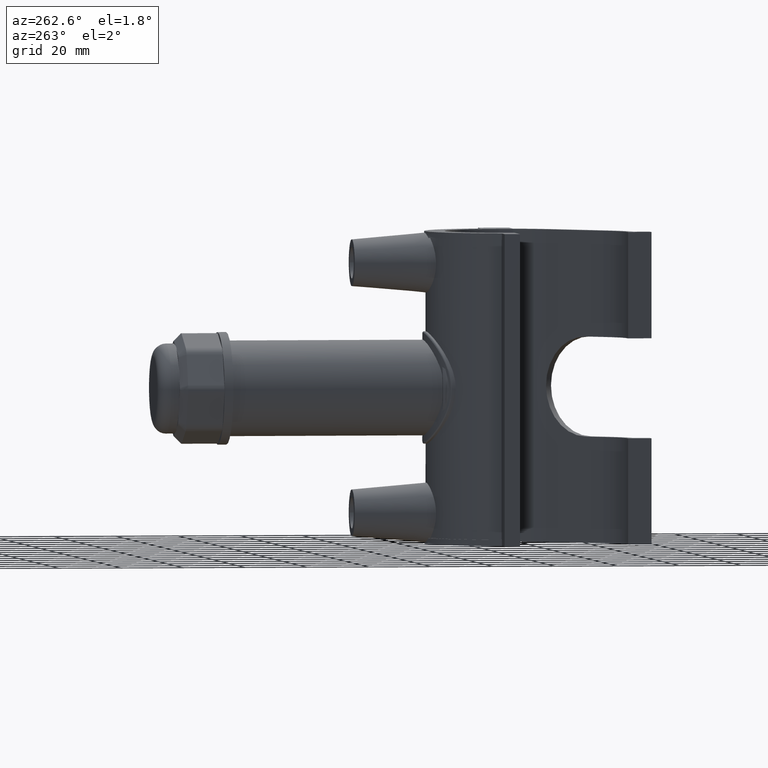
[diagram: clean part render]
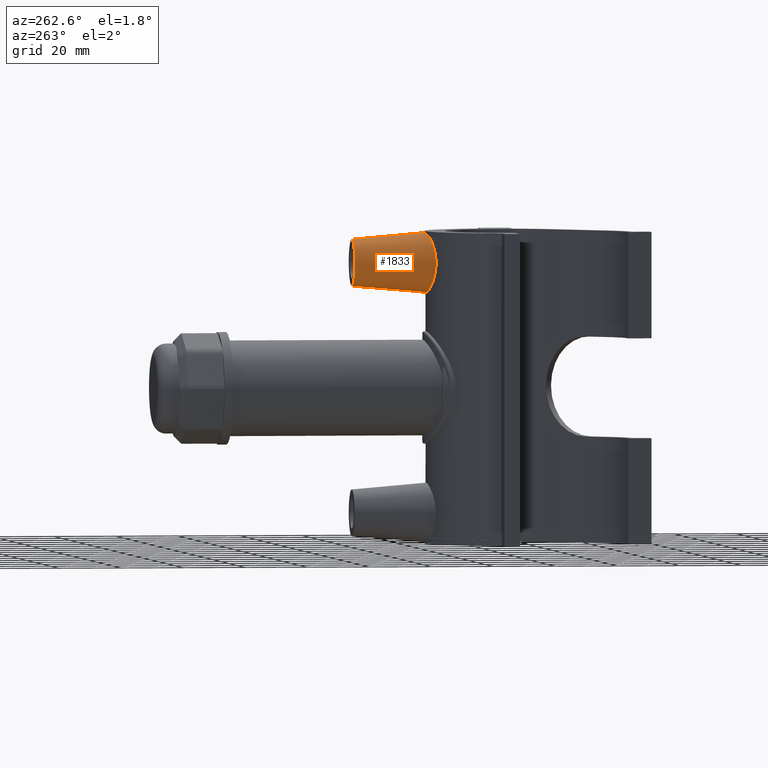
[diagram: same view with one face highlighted and labeled with its STEP entity id]
A machine part, auxiliary view. The second image highlights one B-rep face of the part: STEP entity #1833.
In plain terms, the highlighted conical surface has half-angle 5 deg.
Its self-contained STEP definition (entity closure, byte-faithful):
#19=(
BOUNDED_CURVE()
B_SPLINE_CURVE(2,(#3421,#3422,#3423),.UNSPECIFIED.,.F.,.F.)
B_SPLINE_CURVE_WITH_KNOTS((3,3),(0.0558360570482737,0.112042930826622),
 .UNSPECIFIED.)
CURVE()
GEOMETRIC_REPRESENTATION_ITEM()
RATIONAL_B_SPLINE_CURVE((1.00006763645424,1.00009167201305,1.00009556013023))
REPRESENTATION_ITEM('')
);
#20=(
BOUNDED_CURVE()
B_SPLINE_CURVE(2,(#3427,#3428,#3429),.UNSPECIFIED.,.F.,.F.)
B_SPLINE_CURVE_WITH_KNOTS((3,3),(0.133736892367414,0.189943766145763),
 .UNSPECIFIED.)
CURVE()
GEOMETRIC_REPRESENTATION_ITEM()
RATIONAL_B_SPLINE_CURVE((1.00009556013023,1.00009167201305,1.00006763645424))
REPRESENTATION_ITEM('')
);
#41=CONICAL_SURFACE('',#2008,7.5,5.);
#345=FACE_BOUND('',#604,.T.);
#370=B_SPLINE_CURVE_WITH_KNOTS('',3,(#3116,#3117,#3118,#3119,#3120,#3121,
#3122,#3123,#3124,#3125,#3126,#3127,#3128,#3129,#3130,#3131,#3132,#3133,
#3134,#3135,#3136,#3137,#3138,#3139,#3140),.UNSPECIFIED.,.F.,.F.,(4,2,2,
3,2,2,2,2,2,2,2,4),(4.97357930476659,5.16051763266937,5.53021928248246,
5.89992093229554,6.26962258210863,6.63932423192171,7.00711269864557,7.37490116536943,
7.74268963209329,8.11047809881715,8.48017974863023,8.84988139844332),
 .UNSPECIFIED.);
#371=B_SPLINE_CURVE_WITH_KNOTS('',3,(#3142,#3143,#3144,#3145,#3146,#3147,
#3148,#3149),.UNSPECIFIED.,.F.,.F.,(4,2,2,4),(2.94996046614777,3.31966211596086,
3.68936376577394,3.87630209367673),.UNSPECIFIED.);
#378=B_SPLINE_CURVE_WITH_KNOTS('',3,(#3434,#3435,#3436,#3437,#3438,#3439,
#3440,#3441,#3442,#3443),.UNSPECIFIED.,.F.,.F.,(4,2,2,2,4),(3.86154772595049,
4.03463958852525,4.40043196614832,4.76622434377139,4.93931620634615),
 .UNSPECIFIED.);
#479=FACE_OUTER_BOUND('',#603,.T.);
#603=EDGE_LOOP('',(#1504,#1505,#1506,#1507,#1508));
#604=EDGE_LOOP('',(#1509));
#710=CIRCLE('',#2009,7.5);
#828=VERTEX_POINT('',#3113);
#829=VERTEX_POINT('',#3115);
#830=VERTEX_POINT('',#3141);
#846=VERTEX_POINT('',#3420);
#847=VERTEX_POINT('',#3426);
#852=VERTEX_POINT('',#3454);
#1048=EDGE_CURVE('',#828,#829,#370,.T.);
#1049=EDGE_CURVE('',#829,#830,#371,.T.);
#1074=EDGE_CURVE('',#846,#830,#19,.T.);
#1076=EDGE_CURVE('',#828,#847,#20,.T.);
#1079=EDGE_CURVE('',#847,#846,#378,.T.);
#1085=EDGE_CURVE('',#852,#852,#710,.T.);
#1504=ORIENTED_EDGE('',*,*,#1076,.T.);
#1505=ORIENTED_EDGE('',*,*,#1079,.T.);
#1506=ORIENTED_EDGE('',*,*,#1074,.T.);
#1507=ORIENTED_EDGE('',*,*,#1049,.F.);
#1508=ORIENTED_EDGE('',*,*,#1048,.F.);
#1509=ORIENTED_EDGE('',*,*,#1085,.F.);
#1833=ADVANCED_FACE('',(#479,#345),#41,.T.);
#2008=AXIS2_PLACEMENT_3D('',#3453,#2420,#2421);
#2009=AXIS2_PLACEMENT_3D('',#3455,#2422,#2423);
#2420=DIRECTION('center_axis',(0.,-1.,0.));
#2421=DIRECTION('ref_axis',(1.,0.,0.));
#2422=DIRECTION('center_axis',(0.,1.,0.));
#2423=DIRECTION('ref_axis',(1.,0.,0.));
#3113=CARTESIAN_POINT('',(-5.3951674336109,25.4340749460896,48.));
#3115=CARTESIAN_POINT('',(9.76630249195255,24.096043983104,40.));
#3116=CARTESIAN_POINT('Ctrl Pts',(-5.3951674336109,25.4340749460896,48.));
#3117=CARTESIAN_POINT('Ctrl Pts',(-5.93451184178679,25.3196672708485,47.6483411838531));
#3118=CARTESIAN_POINT('Ctrl Pts',(-6.42972331783999,25.1965310724773,47.2485693515817));
#3119=CARTESIAN_POINT('Ctrl Pts',(-7.73484343137409,24.8390807172828,45.9790627512517));
#3120=CARTESIAN_POINT('Ctrl Pts',(-8.49387395753575,24.5794092044208,44.9067073127729));
#3121=CARTESIAN_POINT('Ctrl Pts',(-9.50996216014971,24.2044189053942,42.5340450094426));
#3122=CARTESIAN_POINT('Ctrl Pts',(-9.76630249195255,24.096043983104,41.2323388327103));
#3123=CARTESIAN_POINT('Ctrl Pts',(-9.76630249195255,24.096043983104,40.));
#3124=CARTESIAN_POINT('Ctrl Pts',(-9.76630249195255,24.096043983104,38.7676611672897));
#3125=CARTESIAN_POINT('Ctrl Pts',(-9.50996216014971,24.2044189053943,37.4659549905574));
#3126=CARTESIAN_POINT('Ctrl Pts',(-8.49387395753574,24.5794092044208,35.0932926872271));
#3127=CARTESIAN_POINT('Ctrl Pts',(-7.73484343137409,24.8390807172828,34.0209372487483));
#3128=CARTESIAN_POINT('Ctrl Pts',(-6.00569492756996,25.3126652865951,32.3389729484772));
#3129=CARTESIAN_POINT('Ctrl Pts',(-4.91758131382388,25.5592379122145,31.6109466468528));
#3130=CARTESIAN_POINT('Ctrl Pts',(-2.528128502029,25.9049380292898,30.6412987795354));
#3131=CARTESIAN_POINT('Ctrl Pts',(-1.22596155574619,26.,30.4002720753778));
#3132=CARTESIAN_POINT('Ctrl Pts',(1.22596155574619,26.,30.4002720753778));
#3133=CARTESIAN_POINT('Ctrl Pts',(2.528128502029,25.9049380292898,30.6412987795354));
#3134=CARTESIAN_POINT('Ctrl Pts',(4.91758131382388,25.5592379122145,31.6109466468528));
#3135=CARTESIAN_POINT('Ctrl Pts',(6.00569492756995,25.3126652865951,32.3389729484772));
#3136=CARTESIAN_POINT('Ctrl Pts',(7.73484343137408,24.8390807172828,34.0209372487483));
#3137=CARTESIAN_POINT('Ctrl Pts',(8.49387395753574,24.5794092044208,35.0932926872271));
#3138=CARTESIAN_POINT('Ctrl Pts',(9.50996216014971,24.2044189053942,37.4659549905574));
#3139=CARTESIAN_POINT('Ctrl Pts',(9.76630249195255,24.096043983104,38.7676611672897));
#3140=CARTESIAN_POINT('Ctrl Pts',(9.76630249195255,24.096043983104,40.));
#3141=CARTESIAN_POINT('',(5.3951674336109,25.4340749460896,48.));
#3142=CARTESIAN_POINT('Ctrl Pts',(9.76630249195255,24.096043983104,40.));
#3143=CARTESIAN_POINT('Ctrl Pts',(9.76630249195255,24.096043983104,41.2323388327103));
#3144=CARTESIAN_POINT('Ctrl Pts',(9.50996216014971,24.2044189053942,42.5340450094426));
#3145=CARTESIAN_POINT('Ctrl Pts',(8.49387395753575,24.5794092044208,44.9067073127729));
#3146=CARTESIAN_POINT('Ctrl Pts',(7.73484343137409,24.8390807172828,45.9790627512517));
#3147=CARTESIAN_POINT('Ctrl Pts',(6.42972331783999,25.1965310724773,47.2485693515817));
#3148=CARTESIAN_POINT('Ctrl Pts',(5.93451184178679,25.3196672708485,47.6483411838531));
#3149=CARTESIAN_POINT('Ctrl Pts',(5.3951674336109,25.4340749460896,48.));
#3420=CARTESIAN_POINT('',(5.30876387516254,25.9832143145872,48.));
#3421=CARTESIAN_POINT('Ctrl Pts',(5.30876387516254,25.9832143145872,48.));
#3422=CARTESIAN_POINT('Ctrl Pts',(5.35185783535865,25.7108609933762,48.));
#3423=CARTESIAN_POINT('Ctrl Pts',(5.3951674336109,25.4340749460896,48.));
#3426=CARTESIAN_POINT('',(-5.30876387516254,25.9832143145872,48.));
#3427=CARTESIAN_POINT('Ctrl Pts',(-5.3951674336109,25.4340749460896,48.));
#3428=CARTESIAN_POINT('Ctrl Pts',(-5.3518578353578,25.7108609933817,48.));
#3429=CARTESIAN_POINT('Ctrl Pts',(-5.30876387516254,25.9832143145872,48.));
#3434=CARTESIAN_POINT('Ctrl Pts',(-5.30876387516254,25.9832143145872,48.));
#3435=CARTESIAN_POINT('Ctrl Pts',(-4.80614466395267,26.0859070253168,48.3227531575944));
#3436=CARTESIAN_POINT('Ctrl Pts',(-4.26604609183942,26.1807941840248,48.6035301130302));
#3437=CARTESIAN_POINT('Ctrl Pts',(-2.51473217360753,26.427785365591,49.3144846289839));
#3438=CARTESIAN_POINT('Ctrl Pts',(-1.21930792541024,26.52,49.5542338195887));
#3439=CARTESIAN_POINT('Ctrl Pts',(1.21930792541023,26.52,49.5542338195887));
#3440=CARTESIAN_POINT('Ctrl Pts',(2.51473217360752,26.427785365591,49.3144846289839));
#3441=CARTESIAN_POINT('Ctrl Pts',(4.26604609183941,26.1807941840248,48.6035301130302));
#3442=CARTESIAN_POINT('Ctrl Pts',(4.80614466395267,26.0859070253168,48.3227531575944));
#3443=CARTESIAN_POINT('Ctrl Pts',(5.30876387516253,25.9832143145872,48.));
#3453=CARTESIAN_POINT('Origin',(0.,50.,40.));
#3454=CARTESIAN_POINT('',(-7.5,50.,40.));
#3455=CARTESIAN_POINT('Origin',(0.,50.,40.));